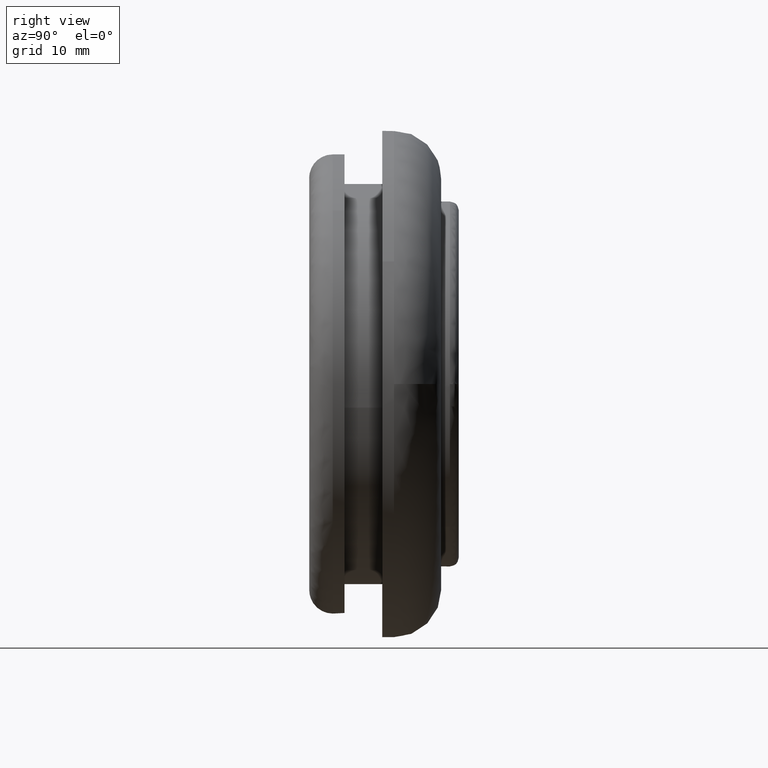
[diagram: clean part render]
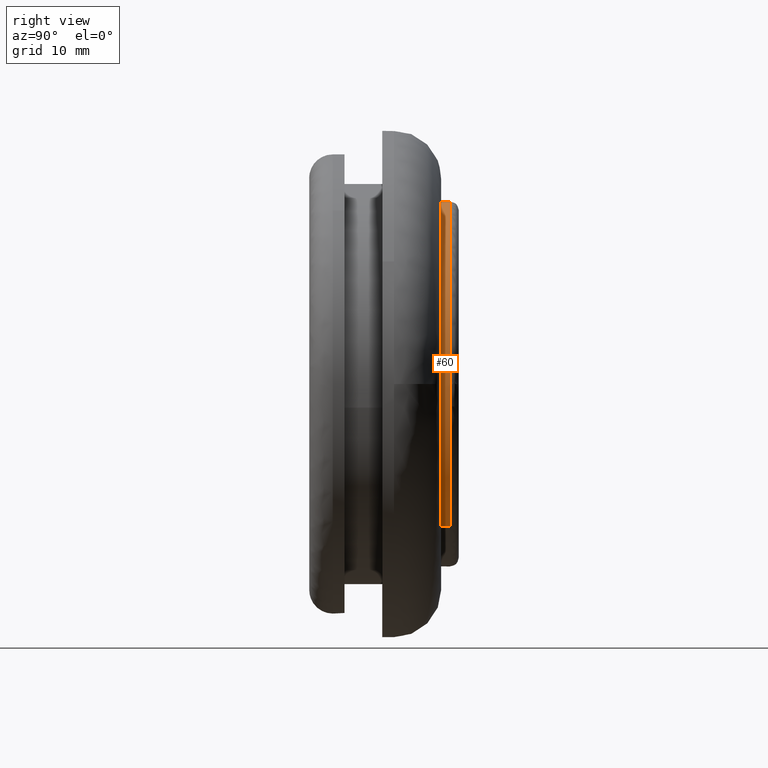
[diagram: same view with one face highlighted and labeled with its STEP entity id]
A machine part, right view. The second image highlights one B-rep face of the part: STEP entity #60.
In plain terms, the highlighted cylindrical surface (partial cylindrical patch) has radius 15.5 mm, axis along (-0, 1, -0).
Its self-contained STEP definition (entity closure, byte-faithful):
#60=ADVANCED_FACE('',(#273),#272,.T.);
#272=CYLINDRICAL_SURFACE('',#534,1.55000000000E+001);
#273=FACE_OUTER_BOUND('',#535,.T.);
#531=CARTESIAN_POINT('',(-4.01054050193E-017,1.19687500000E+001,-3.19012796049E-017));
#532=DIRECTION('',(-1.01794404963E-016,1.00000000000E+000,-8.09709258235E-017));
#533=DIRECTION('',(6.22514636638E-001,-0.00000000000E+000,-7.82608156852E-001));
#534=AXIS2_PLACEMENT_3D('',#531,#532,#533);
#535=EDGE_LOOP('',(#765,#766,#767,#768,#769,#770,#771,#772));
#765=ORIENTED_EDGE('',*,*,#823,.F.);
#766=ORIENTED_EDGE('',*,*,#825,.F.);
#767=ORIENTED_EDGE('',*,*,#877,.T.);
#768=ORIENTED_EDGE('',*,*,#879,.T.);
#769=ORIENTED_EDGE('',*,*,#880,.T.);
#770=ORIENTED_EDGE('',*,*,#881,.T.);
#771=ORIENTED_EDGE('',*,*,#882,.T.);
#772=ORIENTED_EDGE('',*,*,#878,.F.);
#823=EDGE_CURVE('',#959,#960,#961,.T.);
#825=EDGE_CURVE('',#967,#959,#974,.T.);
#877=EDGE_CURVE('',#967,#1319,#1326,.T.);
#878=EDGE_CURVE('',#960,#1311,#1332,.T.);
#879=EDGE_CURVE('',#1319,#1338,#1339,.T.);
#880=EDGE_CURVE('',#1338,#1345,#1346,.T.);
#881=EDGE_CURVE('',#1345,#1352,#1353,.T.);
#882=EDGE_CURVE('',#1352,#1311,#1359,.T.);
#959=VERTEX_POINT('',#1495);
#960=VERTEX_POINT('',#1496);
#961=CIRCLE('',#1500,1.55000000000E+001);
#967=VERTEX_POINT('',#1501);
#974=CIRCLE('',#1509,1.55000000000E+001);
#1311=VERTEX_POINT('',#1725);
#1319=VERTEX_POINT('',#1731);
#1326=(BOUNDED_CURVE() B_SPLINE_CURVE(1,(#1736,#1737),.UNSPECIFIED.,.F.,.F.) B_SPLINE_CURVE_WITH_KNOTS((2,2),(8.33332935974E-002,9.16666633252E-001),.UNSPECIFIED.) CURVE() GEOMETRIC_REPRESENTATION_ITEM() RATIONAL_B_SPLINE_CURVE((1.00000000000E+000,1.00000000000E+000)) REPRESENTATION_ITEM('') );
#1332=(BOUNDED_CURVE() B_SPLINE_CURVE(1,(#1738,#1739),.UNSPECIFIED.,.F.,.F.) B_SPLINE_CURVE_WITH_KNOTS((2,2),(8.33333333333E-002,9.16666666569E-001),.UNSPECIFIED.) CURVE() GEOMETRIC_REPRESENTATION_ITEM() RATIONAL_B_SPLINE_CURVE((7.50000000000E-001,7.50000000000E-001)) REPRESENTATION_ITEM('') );
#1338=VERTEX_POINT('',#1740);
#1339=CIRCLE('',#1744,1.55000000000E+001);
#1345=VERTEX_POINT('',#1745);
#1346=CIRCLE('',#1749,1.55000000000E+001);
#1352=VERTEX_POINT('',#1750);
#1353=CIRCLE('',#1754,1.55000000000E+001);
#1359=CIRCLE('',#1758,1.55000000000E+001);
#1495=CARTESIAN_POINT('',(1.00996142872E-015,1.12000000000E+001,1.55000000000E+001));
#1496=CARTESIAN_POINT('',(-9.65159657339E+000,1.12000000000E+001,1.21283421614E+001));
#1497=CARTESIAN_POINT('',(1.33226762955E-014,1.12000000000E+001,-1.77635683940E-014));
#1498=DIRECTION('',(0.00000000000E+000,-1.00000000000E+000,-0.00000000000E+000));
#1499=DIRECTION('',(-9.16829336465E-016,-0.00000000000E+000,1.00000000000E+000));
#1500=AXIS2_PLACEMENT_3D('',#1497,#1498,#1499);
#1501=CARTESIAN_POINT('',(9.64897686762E+000,1.12000000000E+001,-1.21304264314E+001));
#1506=CARTESIAN_POINT('',(1.33226762955E-014,1.12000000000E+001,-1.77635683940E-014));
#1507=DIRECTION('',(0.00000000000E+000,-1.00000000000E+000,-0.00000000000E+000));
#1508=DIRECTION('',(-9.16829336465E-016,-0.00000000000E+000,1.00000000000E+000));
#1509=AXIS2_PLACEMENT_3D('',#1506,#1507,#1508);
#1725=CARTESIAN_POINT('',(-9.64938741469E+000,1.19500000000E+001,1.21300998562E+001));
#1731=CARTESIAN_POINT('',(9.64897006004E+000,1.19500000000E+001,-1.21304318464E+001));
#1736=CARTESIAN_POINT('',(9.64897686788E+000,1.11999999642E+001,-1.21304264312E+001));
#1737=CARTESIAN_POINT('',(9.64897686788E+000,1.19499999700E+001,-1.21304264312E+001));
#1738=CARTESIAN_POINT('',(-9.64897686788E+000,1.12000000000E+001,1.21304264312E+001));
#1739=CARTESIAN_POINT('',(-9.64897686788E+000,1.19500000000E+001,1.21304264312E+001));
#1740=CARTESIAN_POINT('',(1.53963304012E+001,1.19500000000E+001,-1.78969555458E+000));
#1741=CARTESIAN_POINT('',(-4.06785716223E-013,1.19500000000E+001,-5.77315972805E-014));
#1742=DIRECTION('',(-5.42695541906E-014,-1.00000000000E+000,-1.39405942398E-012));
#1743=DIRECTION('',(7.82608254584E-001,-9.10294025569E-013,6.22514513772E-001));
#1744=AXIS2_PLACEMENT_3D('',#1741,#1742,#1743);
#1745=CARTESIAN_POINT('',(1.55000000000E+001,1.19500000000E+001,3.21307399356E-005));
#1746=CARTESIAN_POINT('',(8.75743921824E-013,1.19500000002E+001,8.88178419700E-016));
#1747=DIRECTION('',(-1.32831735148E-011,-1.00000000000E+000,-2.82092688293E-011));
#1748=DIRECTION('',(-9.93311638785E-001,9.93716936694E-012,1.15464229328E-001));
#1749=AXIS2_PLACEMENT_3D('',#1746,#1747,#1748);
#1750=CARTESIAN_POINT('',(1.21304279460E+001,1.19500000000E+001,9.64897496347E+000));
#1751=CARTESIAN_POINT('',(8.75743921824E-013,1.19500000002E+001,8.88178419700E-016));
#1752=DIRECTION('',(-1.32831735148E-011,-1.00000000000E+000,-2.82092688293E-011));
#1753=DIRECTION('',(-9.93311638785E-001,9.93716936694E-012,1.15464229328E-001));
#1754=AXIS2_PLACEMENT_3D('',#1751,#1752,#1753);
#1755=CARTESIAN_POINT('',(-4.06785716223E-013,1.19500000000E+001,-5.77315972805E-014));
#1756=DIRECTION('',(-5.42695541906E-014,-1.00000000000E+000,-1.39405942398E-012));
#1757=DIRECTION('',(7.82608254584E-001,-9.10294025569E-013,6.22514513772E-001));
#1758=AXIS2_PLACEMENT_3D('',#1755,#1756,#1757);